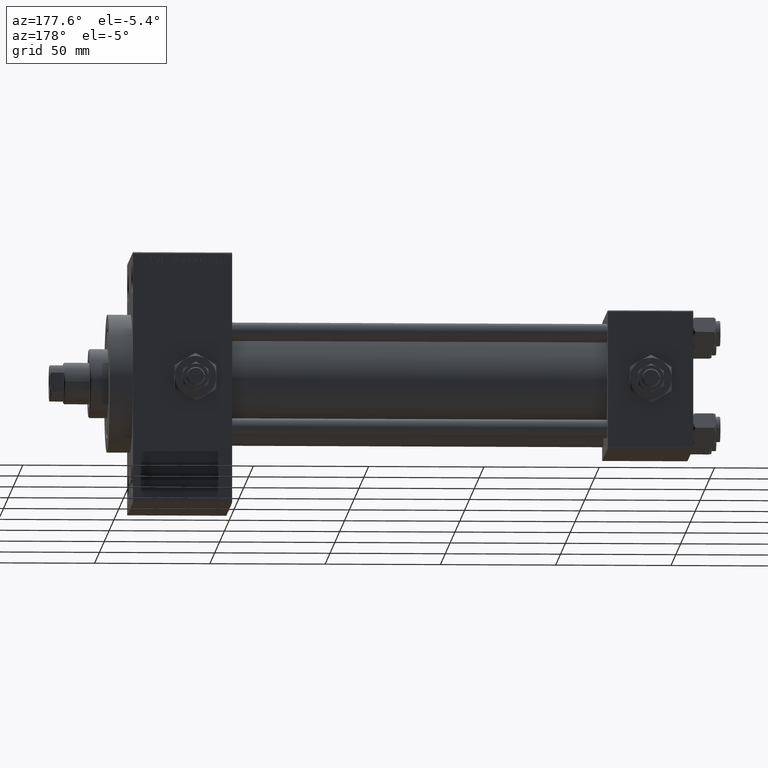
[diagram: clean part render]
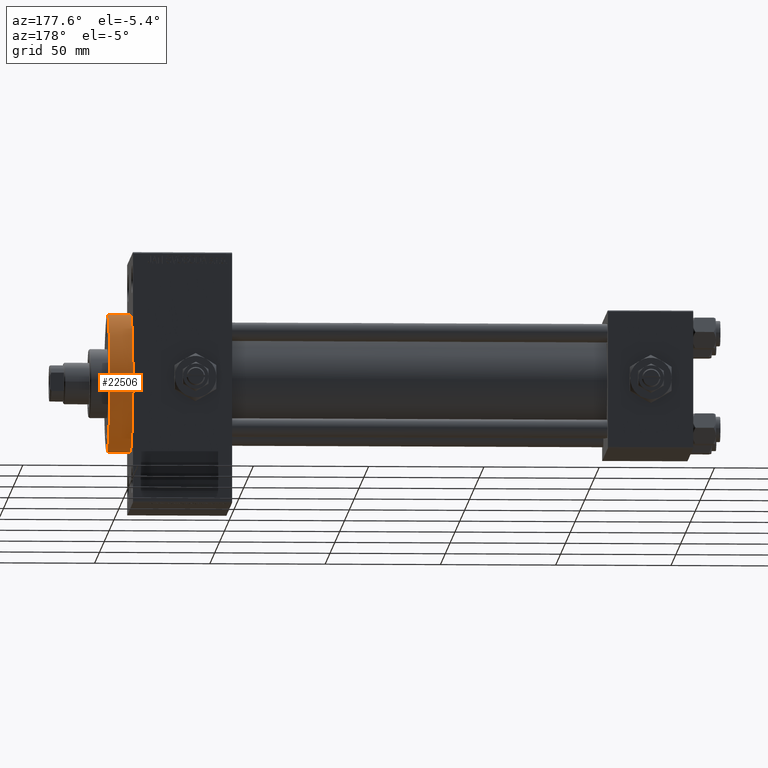
[diagram: same view with one face highlighted and labeled with its STEP entity id]
A machine part, auxiliary view. The second image highlights one B-rep face of the part: STEP entity #22506.
In plain terms, the highlighted cylindrical surface (partial cylindrical patch) has radius 30 mm, axis along (-1, -0, -0).
Its self-contained STEP definition (entity closure, byte-faithful):
#2003 = CARTESIAN_POINT ( 'NONE',  ( 253.0000000000000000, 0.000000000000000000, 0.000000000000000000 ) ) ;
#2248 = DIRECTION ( 'NONE',  ( 1.000000000000000000, 0.000000000000000000, 0.000000000000000000 ) ) ;
#2834 = ORIENTED_EDGE ( 'NONE', *, *, #24600, .T. ) ;
#4152 = AXIS2_PLACEMENT_3D ( 'NONE', #2003, #21034, #47819 ) ;
#4910 = VERTEX_POINT ( 'NONE', #21916 ) ;
#5438 = EDGE_CURVE ( 'NONE', #27585, #45079, #22569, .T. ) ;
#6278 = CARTESIAN_POINT ( 'NONE',  ( 243.0000000000000000, 0.000000000000000000, 30.00000000000000000 ) ) ;
#7154 = AXIS2_PLACEMENT_3D ( 'NONE', #22430, #14885, #37691 ) ;
#10377 = ORIENTED_EDGE ( 'NONE', *, *, #49205, .T. ) ;
#12715 = CYLINDRICAL_SURFACE ( 'NONE', #18246, 30.00000000000000000 ) ;
#13644 = CARTESIAN_POINT ( 'NONE',  ( 253.0000000000000000, 3.673940397442059178E-15, -30.00000000000000000 ) ) ;
#13874 = DIRECTION ( 'NONE',  ( -1.000000000000000000, -0.000000000000000000, -0.000000000000000000 ) ) ;
#14233 = AXIS2_PLACEMENT_3D ( 'NONE', #48061, #2248, #17525 ) ;
#14885 = DIRECTION ( 'NONE',  ( 1.000000000000000000, 0.000000000000000000, 0.000000000000000000 ) ) ;
#15732 = DIRECTION ( 'NONE',  ( -1.000000000000000000, -0.000000000000000000, -0.000000000000000000 ) ) ;
#16226 = FACE_OUTER_BOUND ( 'NONE', #30563, .T. ) ;
#17484 = VERTEX_POINT ( 'NONE', #6278 ) ;
#17525 = DIRECTION ( 'NONE',  ( 0.000000000000000000, 0.000000000000000000, -1.000000000000000000 ) ) ;
#17577 = CARTESIAN_POINT ( 'NONE',  ( 253.0000000000000000, 0.000000000000000000, 30.00000000000000000 ) ) ;
#18246 = AXIS2_PLACEMENT_3D ( 'NONE', #19497, #15732, #43256 ) ;
#19497 = CARTESIAN_POINT ( 'NONE',  ( 253.0000000000000000, 0.000000000000000000, 0.000000000000000000 ) ) ;
#19547 = CARTESIAN_POINT ( 'NONE',  ( 253.0000000000000000, 3.673940397442059178E-15, -30.00000000000000000 ) ) ;
#20681 = CARTESIAN_POINT ( 'NONE',  ( 243.0000000000000000, 3.673940397442059178E-15, -30.00000000000000000 ) ) ;
#20748 = VERTEX_POINT ( 'NONE', #20681 ) ;
#21034 = DIRECTION ( 'NONE',  ( 1.000000000000000000, 0.000000000000000000, 0.000000000000000000 ) ) ;
#21555 = VECTOR ( 'NONE', #13874, 1000.000000000000000 ) ;
#21636 = CARTESIAN_POINT ( 'NONE',  ( 253.0000000000000000, 0.000000000000000000, 30.00000000000000000 ) ) ;
#21916 = CARTESIAN_POINT ( 'NONE',  ( 243.0000000000000000, 30.00000000000000000, 0.000000000000000000 ) ) ;
#22430 = CARTESIAN_POINT ( 'NONE',  ( 243.0000000000000000, 0.000000000000000000, 0.000000000000000000 ) ) ;
#22506 = ADVANCED_FACE ( 'NONE', ( #16226 ), #12715, .T. ) ;
#22569 = CIRCLE ( 'NONE', #4152, 30.00000000000000000 ) ;
#22998 = EDGE_CURVE ( 'NONE', #20748, #4910, #37456, .T. ) ;
#23905 = ORIENTED_EDGE ( 'NONE', *, *, #5438, .F. ) ;
#24600 = EDGE_CURVE ( 'NONE', #4910, #17484, #31925, .T. ) ;
#27585 = VERTEX_POINT ( 'NONE', #19547 ) ;
#29143 = VECTOR ( 'NONE', #32923, 1000.000000000000000 ) ;
#30563 = EDGE_LOOP ( 'NONE', ( #23905, #10377, #49212, #2834, #47674 ) ) ;
#31925 = CIRCLE ( 'NONE', #7154, 30.00000000000000000 ) ;
#31938 = EDGE_CURVE ( 'NONE', #45079, #17484, #32195, .T. ) ;
#32195 = LINE ( 'NONE', #21636, #21555 ) ;
#32923 = DIRECTION ( 'NONE',  ( -1.000000000000000000, -0.000000000000000000, -0.000000000000000000 ) ) ;
#36451 = LINE ( 'NONE', #13644, #29143 ) ;
#37456 = CIRCLE ( 'NONE', #14233, 30.00000000000000000 ) ;
#37691 = DIRECTION ( 'NONE',  ( 0.000000000000000000, 0.000000000000000000, -1.000000000000000000 ) ) ;
#43256 = DIRECTION ( 'NONE',  ( 0.000000000000000000, 0.000000000000000000, 1.000000000000000000 ) ) ;
#45079 = VERTEX_POINT ( 'NONE', #17577 ) ;
#47674 = ORIENTED_EDGE ( 'NONE', *, *, #31938, .F. ) ;
#47819 = DIRECTION ( 'NONE',  ( 0.000000000000000000, 0.000000000000000000, -1.000000000000000000 ) ) ;
#48061 = CARTESIAN_POINT ( 'NONE',  ( 243.0000000000000000, 0.000000000000000000, 0.000000000000000000 ) ) ;
#49205 = EDGE_CURVE ( 'NONE', #27585, #20748, #36451, .T. ) ;
#49212 = ORIENTED_EDGE ( 'NONE', *, *, #22998, .T. ) ;